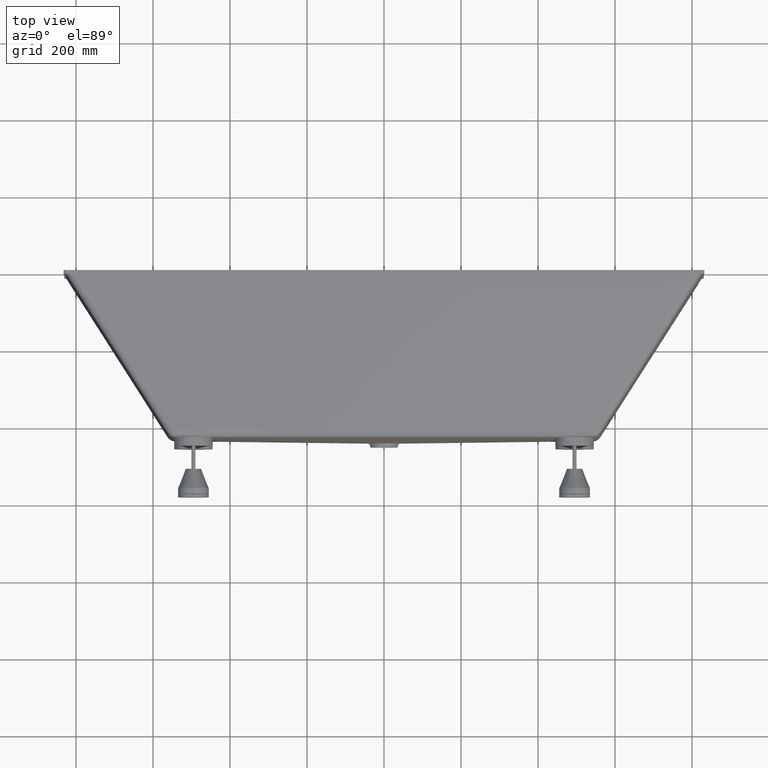
[diagram: clean part render]
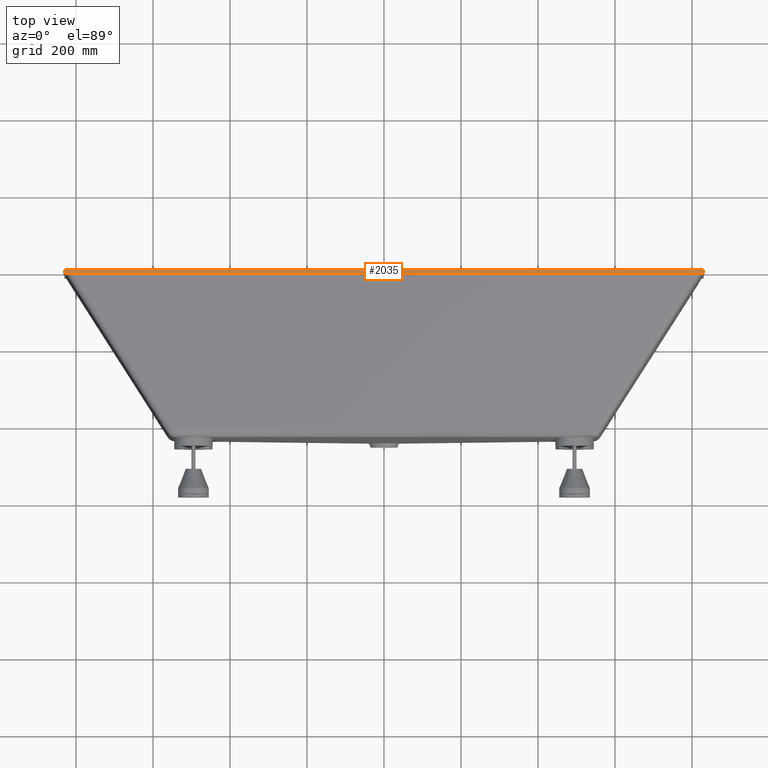
[diagram: same view with one face highlighted and labeled with its STEP entity id]
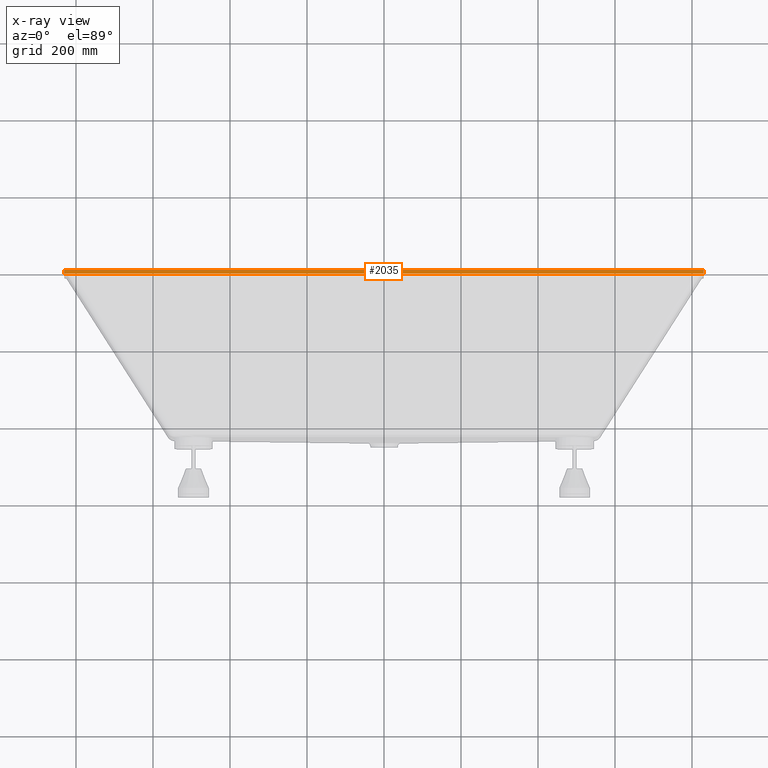
[diagram: x-ray of the same camera — body ghosted, the highlighted face saturated]
A machine part, top view. The second image highlights one B-rep face of the part: STEP entity #2035.
The next image is the same camera in x-ray: the body ghosted, the highlighted face saturated — about 0% of this face is hidden behind the body in this view.
In plain terms, the highlighted planar face has unit normal (0, 0, 1).
Its self-contained STEP definition (entity closure, byte-faithful):
#283 = DIRECTION ( 'NONE',  ( 1.000000000000000000, 0.0000000000000000000, 0.0000000000000000000 ) ) ;
#289 = AXIS2_PLACEMENT_3D ( 'NONE', #5641, #4779, #4771 ) ;
#294 = CARTESIAN_POINT ( 'NONE',  ( -830.0000000000000000, -10.00000000000000000, 354.9999999999999400 ) ) ;
#947 = VERTEX_POINT ( 'NONE', #5159 ) ;
#1094 = EDGE_CURVE ( 'NONE', #9753, #947, #1381, .T. ) ;
#1381 = LINE ( 'NONE', #6503, #3393 ) ;
#1397 = VERTEX_POINT ( 'NONE', #2059 ) ;
#1679 = LINE ( 'NONE', #9778, #5802 ) ;
#2035 = ADVANCED_FACE ( 'NONE', ( #6754 ), #4998, .T. ) ;
#2059 = CARTESIAN_POINT ( 'NONE',  ( -830.0000000000000000, 0.0000000000000000000, 354.9999999999999400 ) ) ;
#2072 = VECTOR ( 'NONE', #283, 1000.000000000000000 ) ;
#2129 = EDGE_CURVE ( 'NONE', #4347, #9753, #2320, .T. ) ;
#2320 = LINE ( 'NONE', #294, #2072 ) ;
#2614 = ORIENTED_EDGE ( 'NONE', *, *, #4705, .F. ) ;
#2658 = CARTESIAN_POINT ( 'NONE',  ( -830.0000000000000000, 0.0000000000000000000, 354.9999999999999400 ) ) ;
#3223 = EDGE_LOOP ( 'NONE', ( #2614, #7913, #7263, #8309 ) ) ;
#3393 = VECTOR ( 'NONE', #6535, 1000.000000000000000 ) ;
#3972 = VECTOR ( 'NONE', #4245, 1000.000000000000000 ) ;
#4245 = DIRECTION ( 'NONE',  ( 1.000000000000000000, 0.0000000000000000000, 0.0000000000000000000 ) ) ;
#4347 = VERTEX_POINT ( 'NONE', #6577 ) ;
#4705 = EDGE_CURVE ( 'NONE', #1397, #947, #5815, .T. ) ;
#4771 = DIRECTION ( 'NONE',  ( 1.000000000000000000, 0.0000000000000000000, -0.0000000000000000000 ) ) ;
#4779 = DIRECTION ( 'NONE',  ( 0.0000000000000000000, 0.0000000000000000000, 1.000000000000000000 ) ) ;
#4998 = PLANE ( 'NONE',  #289 ) ;
#5159 = CARTESIAN_POINT ( 'NONE',  ( 830.0000000000003400, 0.0000000000000000000, 354.9999999999999400 ) ) ;
#5641 = CARTESIAN_POINT ( 'NONE',  ( -830.0000000000000000, -10.00000000000000000, 354.9999999999999400 ) ) ;
#5802 = VECTOR ( 'NONE', #9658, 1000.000000000000000 ) ;
#5815 = LINE ( 'NONE', #2658, #3972 ) ;
#6163 = CARTESIAN_POINT ( 'NONE',  ( 830.0000000000003400, -10.00000000000000000, 354.9999999999999400 ) ) ;
#6503 = CARTESIAN_POINT ( 'NONE',  ( 830.0000000000003400, -10.00000000000000000, 354.9999999999999400 ) ) ;
#6535 = DIRECTION ( 'NONE',  ( 0.0000000000000000000, 1.000000000000000000, 0.0000000000000000000 ) ) ;
#6577 = CARTESIAN_POINT ( 'NONE',  ( -830.0000000000000000, -10.00000000000000000, 354.9999999999999400 ) ) ;
#6754 = FACE_OUTER_BOUND ( 'NONE', #3223, .T. ) ;
#7263 = ORIENTED_EDGE ( 'NONE', *, *, #2129, .T. ) ;
#7382 = EDGE_CURVE ( 'NONE', #4347, #1397, #1679, .T. ) ;
#7913 = ORIENTED_EDGE ( 'NONE', *, *, #7382, .F. ) ;
#8309 = ORIENTED_EDGE ( 'NONE', *, *, #1094, .T. ) ;
#9658 = DIRECTION ( 'NONE',  ( 0.0000000000000000000, 1.000000000000000000, 0.0000000000000000000 ) ) ;
#9753 = VERTEX_POINT ( 'NONE', #6163 ) ;
#9778 = CARTESIAN_POINT ( 'NONE',  ( -830.0000000000000000, -10.00000000000000000, 354.9999999999999400 ) ) ;